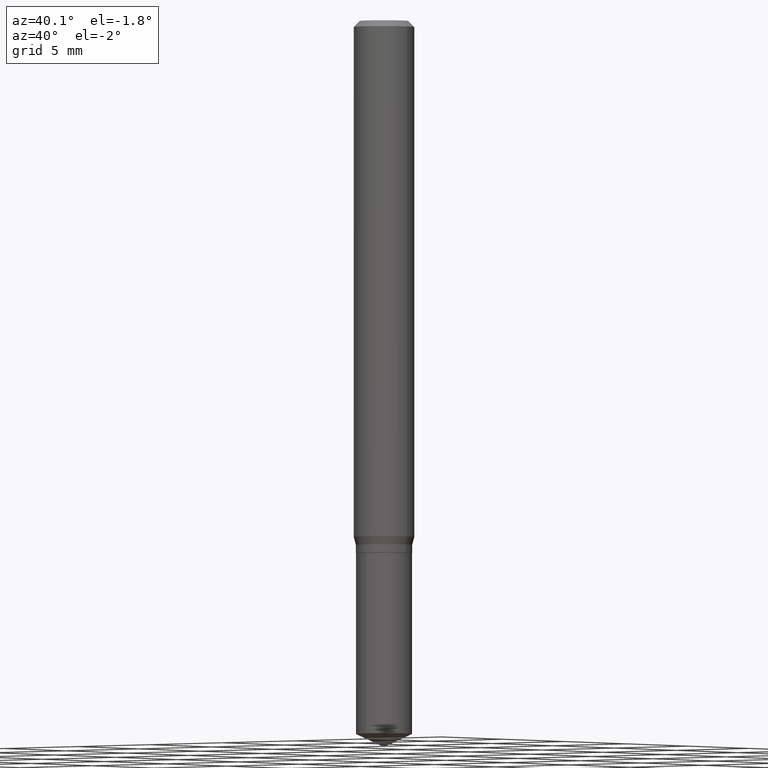
[diagram: clean part render]
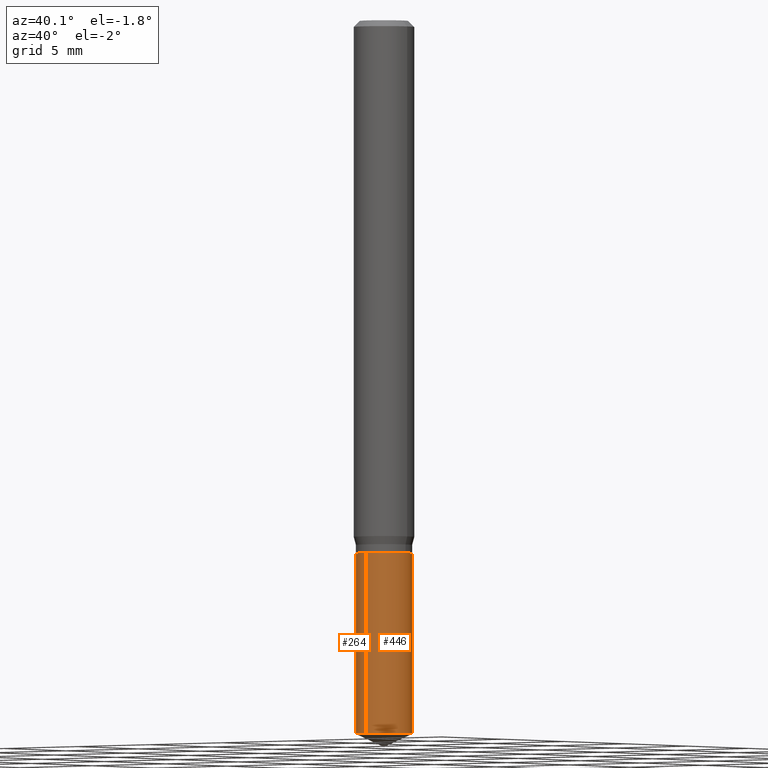
[diagram: same view with one multi-face feature highlighted, each face labeled with its STEP entity id]
A machine part, auxiliary view. The highlighted faces form ONE feature: a constant-radius fillet chain: 2 tangent blend faces with common blend radius 1.4745 mm. The faces share edges in the B-rep.
Their STEP definitions:
[1] entity #264 (Cylinder):
#4 = AXIS2_PLACEMENT_3D ( 'NONE', #7, #179, #309 ) ;
#7 = CARTESIAN_POINT ( 'NONE',  ( 2.690015686803650369E-29, -3.840629472727460101E-15, -1.100000000000000089 ) ) ;
#17 = CARTESIAN_POINT ( 'NONE',  ( 2.690015686803650369E-29, -3.840629472727460101E-15, -1.100000000000000089 ) ) ;
#26 = ORIENTED_EDGE ( 'NONE', *, *, #404, .F. ) ;
#56 = EDGE_CURVE ( 'NONE', #484, #270, #352, .T. ) ;
#57 = CARTESIAN_POINT ( 'NONE',  ( -4.053609834396608520E-16, -0.05805000000000383464, -1.099999999999999867 ) ) ;
#60 = CIRCLE ( 'NONE', #4, 0.05804999999999999744 ) ;
#65 = CARTESIAN_POINT ( 'NONE',  ( 4.124700581087740822E-16, 0.05804999999999614635, -1.100000000000000089 ) ) ;
#74 = AXIS2_PLACEMENT_3D ( 'NONE', #274, #195, #425 ) ;
#81 = EDGE_LOOP ( 'NONE', ( #26, #297, #184, #445 ) ) ;
#82 = VECTOR ( 'NONE', #396, 39.37007874015748143 ) ;
#106 = VERTEX_POINT ( 'NONE', #468 ) ;
#116 = EDGE_CURVE ( 'NONE', #262, #106, #60, .T. ) ;
#129 = CARTESIAN_POINT ( 'NONE',  ( -4.053609834396516322E-16, -0.05805000000000513222, -1.472930840444102163 ) ) ;
#166 = AXIS2_PLACEMENT_3D ( 'NONE', #17, #323, #282 ) ;
#173 = EDGE_CURVE ( 'NONE', #270, #106, #220, .T. ) ;
#179 = DIRECTION ( 'NONE',  ( -2.445399690415121530E-29, 3.491580316559632610E-15, 1.000000000000000000 ) ) ;
#184 = ORIENTED_EDGE ( 'NONE', *, *, #173, .T. ) ;
#195 = DIRECTION ( 'NONE',  ( -2.445399690415121530E-29, 3.491580316559632610E-15, 1.000000000000000000 ) ) ;
#220 = LINE ( 'NONE', #57, #82 ) ;
#262 = VERTEX_POINT ( 'NONE', #65 ) ;
#264 = ADVANCED_FACE ( 'NONE', ( #318 ), #467, .T. ) ;
#270 = VERTEX_POINT ( 'NONE', #129 ) ;
#274 = CARTESIAN_POINT ( 'NONE',  ( 3.601980648571909248E-29, -5.142747454660128608E-15, -1.472930840444102385 ) ) ;
#282 = DIRECTION ( 'NONE',  ( -6.982962677686265922E-15, -1.000000000000000000, 2.353012914439503496E-15 ) ) ;
#288 = CARTESIAN_POINT ( 'NONE',  ( 4.124700581087649609E-16, 0.05804999999999615329, -1.100000000000000089 ) ) ;
#297 = ORIENTED_EDGE ( 'NONE', *, *, #56, .T. ) ;
#302 = CARTESIAN_POINT ( 'NONE',  ( 4.124700581087740822E-16, 0.05804999999999484878, -1.472930840444102829 ) ) ;
#309 = DIRECTION ( 'NONE',  ( -6.982962677686265922E-15, -1.000000000000000000, 2.353012914439503496E-15 ) ) ;
#318 = FACE_OUTER_BOUND ( 'NONE', #81, .T. ) ;
#323 = DIRECTION ( 'NONE',  ( -2.445399690415121530E-29, 3.491580316559632610E-15, 1.000000000000000000 ) ) ;
#352 = CIRCLE ( 'NONE', #74, 0.05804999999999999744 ) ;
#384 = VECTOR ( 'NONE', #441, 39.37007874015748143 ) ;
#396 = DIRECTION ( 'NONE',  ( -2.445399690415121810E-29, 3.491580316559632610E-15, 1.000000000000000000 ) ) ;
#404 = EDGE_CURVE ( 'NONE', #484, #262, #480, .T. ) ;
#425 = DIRECTION ( 'NONE',  ( -6.982962677686265922E-15, -1.000000000000000000, 4.706025828879006993E-15 ) ) ;
#441 = DIRECTION ( 'NONE',  ( -2.445399690415121810E-29, 3.491580316559632610E-15, 1.000000000000000000 ) ) ;
#445 = ORIENTED_EDGE ( 'NONE', *, *, #116, .F. ) ;
#467 = CYLINDRICAL_SURFACE ( 'NONE', #166, 0.05804999999999999744 ) ;
#468 = CARTESIAN_POINT ( 'NONE',  ( -4.053609834396608520E-16, -0.05805000000000383464, -1.099999999999999867 ) ) ;
#480 = LINE ( 'NONE', #288, #384 ) ;
#484 = VERTEX_POINT ( 'NONE', #302 ) ;
[2] entity #446 (Cylinder):
#46 = DIRECTION ( 'NONE',  ( -2.445399690415121530E-29, 3.491580316559632610E-15, 1.000000000000000000 ) ) ;
#51 = AXIS2_PLACEMENT_3D ( 'NONE', #126, #46, #451 ) ;
#57 = CARTESIAN_POINT ( 'NONE',  ( -4.053609834396608520E-16, -0.05805000000000383464, -1.099999999999999867 ) ) ;
#65 = CARTESIAN_POINT ( 'NONE',  ( 4.124700581087740822E-16, 0.05804999999999614635, -1.100000000000000089 ) ) ;
#82 = VECTOR ( 'NONE', #396, 39.37007874015748143 ) ;
#84 = CYLINDRICAL_SURFACE ( 'NONE', #51, 0.05804999999999999744 ) ;
#100 = CIRCLE ( 'NONE', #382, 0.05804999999999999744 ) ;
#106 = VERTEX_POINT ( 'NONE', #468 ) ;
#113 = DIRECTION ( 'NONE',  ( -6.982962677686265922E-15, -1.000000000000000000, 4.706025828879006993E-15 ) ) ;
#123 = ORIENTED_EDGE ( 'NONE', *, *, #298, .T. ) ;
#125 = CIRCLE ( 'NONE', #463, 0.05804999999999999744 ) ;
#126 = CARTESIAN_POINT ( 'NONE',  ( 2.690015686803650369E-29, -3.840629472727460101E-15, -1.100000000000000089 ) ) ;
#129 = CARTESIAN_POINT ( 'NONE',  ( -4.053609834396516322E-16, -0.05805000000000513222, -1.472930840444102163 ) ) ;
#173 = EDGE_CURVE ( 'NONE', #270, #106, #220, .T. ) ;
#192 = FACE_OUTER_BOUND ( 'NONE', #197, .T. ) ;
#197 = EDGE_LOOP ( 'NONE', ( #123, #369, #449, #345 ) ) ;
#220 = LINE ( 'NONE', #57, #82 ) ;
#249 = CARTESIAN_POINT ( 'NONE',  ( 3.601980648571909248E-29, -5.142747454660128608E-15, -1.472930840444102385 ) ) ;
#253 = CARTESIAN_POINT ( 'NONE',  ( 2.690015686803650369E-29, -3.840629472727460101E-15, -1.100000000000000089 ) ) ;
#262 = VERTEX_POINT ( 'NONE', #65 ) ;
#263 = EDGE_CURVE ( 'NONE', #106, #262, #100, .T. ) ;
#270 = VERTEX_POINT ( 'NONE', #129 ) ;
#286 = DIRECTION ( 'NONE',  ( -6.982962677686265922E-15, -1.000000000000000000, 2.353012914439503496E-15 ) ) ;
#288 = CARTESIAN_POINT ( 'NONE',  ( 4.124700581087649609E-16, 0.05804999999999615329, -1.100000000000000089 ) ) ;
#298 = EDGE_CURVE ( 'NONE', #270, #484, #125, .T. ) ;
#302 = CARTESIAN_POINT ( 'NONE',  ( 4.124700581087740822E-16, 0.05804999999999484878, -1.472930840444102829 ) ) ;
#345 = ORIENTED_EDGE ( 'NONE', *, *, #173, .F. ) ;
#360 = DIRECTION ( 'NONE',  ( -2.445399690415121530E-29, 3.491580316559632610E-15, 1.000000000000000000 ) ) ;
#369 = ORIENTED_EDGE ( 'NONE', *, *, #404, .T. ) ;
#382 = AXIS2_PLACEMENT_3D ( 'NONE', #253, #360, #286 ) ;
#384 = VECTOR ( 'NONE', #441, 39.37007874015748143 ) ;
#396 = DIRECTION ( 'NONE',  ( -2.445399690415121810E-29, 3.491580316559632610E-15, 1.000000000000000000 ) ) ;
#404 = EDGE_CURVE ( 'NONE', #484, #262, #480, .T. ) ;
#441 = DIRECTION ( 'NONE',  ( -2.445399690415121810E-29, 3.491580316559632610E-15, 1.000000000000000000 ) ) ;
#446 = ADVANCED_FACE ( 'NONE', ( #192 ), #84, .T. ) ;
#449 = ORIENTED_EDGE ( 'NONE', *, *, #263, .F. ) ;
#451 = DIRECTION ( 'NONE',  ( -6.982962677686265922E-15, -1.000000000000000000, 2.353012914439503496E-15 ) ) ;
#463 = AXIS2_PLACEMENT_3D ( 'NONE', #249, #470, #113 ) ;
#468 = CARTESIAN_POINT ( 'NONE',  ( -4.053609834396608520E-16, -0.05805000000000383464, -1.099999999999999867 ) ) ;
#470 = DIRECTION ( 'NONE',  ( -2.445399690415121530E-29, 3.491580316559632610E-15, 1.000000000000000000 ) ) ;
#480 = LINE ( 'NONE', #288, #384 ) ;
#484 = VERTEX_POINT ( 'NONE', #302 ) ;